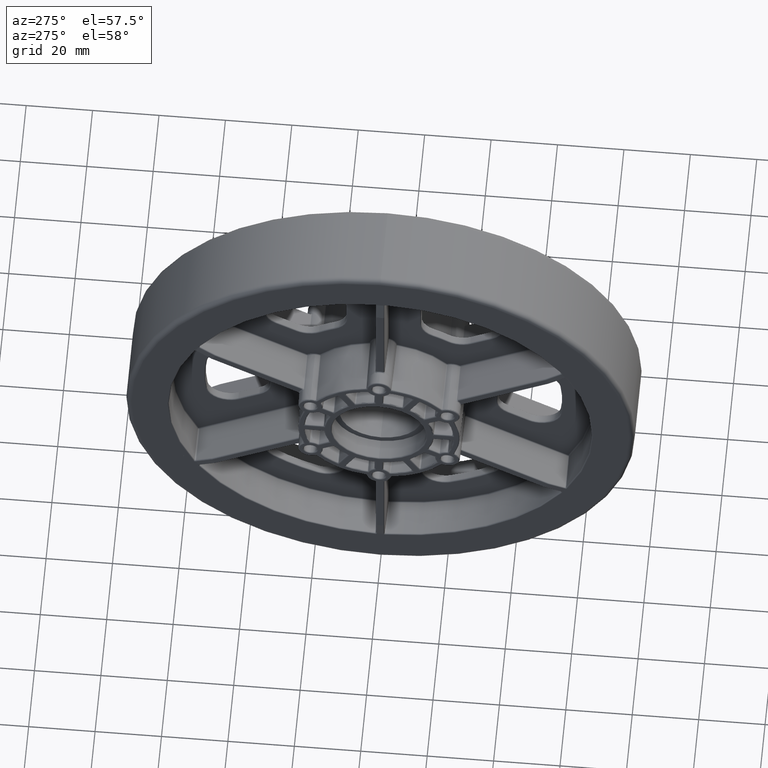
[diagram: clean part render]
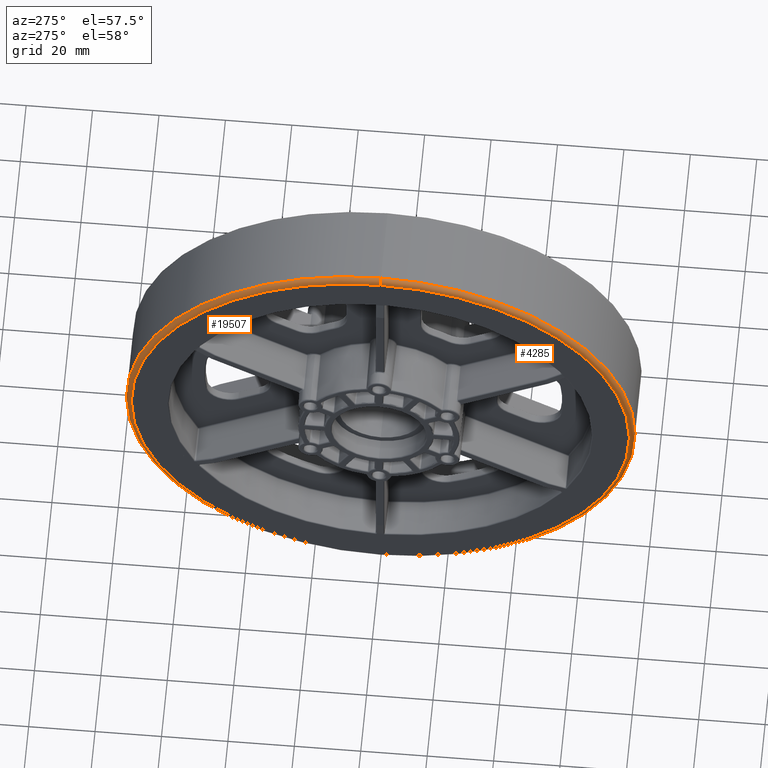
[diagram: same view with one multi-face feature highlighted, each face labeled with its STEP entity id]
A machine part, auxiliary view. The highlighted faces form ONE feature: a constant-radius fillet chain: 2 tangent blend faces with common blend radius 1.5875 mm. The faces share edges in the B-rep.
Their STEP definitions:
[1] entity #19507 (Torus):
#30 = CIRCLE ( 'NONE', #34149, 0.06250000000000022204 ) ;
#460 = CARTESIAN_POINT ( 'NONE',  ( -3.014999999999999236, 0.0000000000000000000, 0.4375000000000000000 ) ) ;
#1394 = ORIENTED_EDGE ( 'NONE', *, *, #31935, .F. ) ;
#1611 = CARTESIAN_POINT ( 'NONE',  ( 0.0000000000000000000, 0.0000000000000000000, 0.4375000000000000000 ) ) ;
#1979 = CARTESIAN_POINT ( 'NONE',  ( -2.952499999999999236, 3.615769674482559056E-16, 0.4375000000000000000 ) ) ;
#3979 = DIRECTION ( 'NONE',  ( 0.0000000000000000000, -1.000000000000000000, 0.0000000000000000000 ) ) ;
#4656 = CIRCLE ( 'NONE', #39413, 2.952499999999999236 ) ;
#5693 = DIRECTION ( 'NONE',  ( 1.000000000000000000, 0.0000000000000000000, 0.0000000000000000000 ) ) ;
#6055 = DIRECTION ( 'NONE',  ( -1.000000000000000000, 1.224646799147345072E-16, 0.0000000000000000000 ) ) ;
#6471 = VERTEX_POINT ( 'NONE', #17876 ) ;
#7879 = CIRCLE ( 'NONE', #38318, 0.06250000000000001388 ) ;
#7890 = VERTEX_POINT ( 'NONE', #31764 ) ;
#10957 = EDGE_CURVE ( 'NONE', #6471, #20269, #7879, .T. ) ;
#11885 = EDGE_CURVE ( 'NONE', #20269, #7890, #4656, .T. ) ;
#12665 = CARTESIAN_POINT ( 'NONE',  ( 0.0000000000000000000, 0.0000000000000000000, 0.4375000000000000000 ) ) ;
#13955 = DIRECTION ( 'NONE',  ( 0.0000000000000000000, 0.0000000000000000000, 1.000000000000000000 ) ) ;
#17876 = CARTESIAN_POINT ( 'NONE',  ( 3.014999999999999236, 3.692310099429269016E-16, 0.4375000000000000000 ) ) ;
#19507 = ADVANCED_FACE ( 'NONE', ( #35890 ), #26402, .T. ) ;
#20224 = CARTESIAN_POINT ( 'NONE',  ( 2.952499999999999236, 0.0000000000000000000, 0.5000000000000000000 ) ) ;
#20269 = VERTEX_POINT ( 'NONE', #20224 ) ;
#26402 = TOROIDAL_SURFACE ( 'NONE', #35143, 2.952499999999999236, 0.06250000000000000000 ) ;
#28333 = CARTESIAN_POINT ( 'NONE',  ( 2.952499999999999236, 0.0000000000000000000, 0.4375000000000000000 ) ) ;
#29997 = DIRECTION ( 'NONE',  ( -0.0000000000000000000, -0.0000000000000000000, -1.000000000000000000 ) ) ;
#30365 = DIRECTION ( 'NONE',  ( 1.224646799147353207E-16, 1.000000000000000000, -0.0000000000000000000 ) ) ;
#31764 = CARTESIAN_POINT ( 'NONE',  ( -2.952499999999999236, 3.654039886955913789E-16, 0.5000000000000000000 ) ) ;
#31935 = EDGE_CURVE ( 'NONE', #46806, #6471, #42690, .T. ) ;
#32394 = DIRECTION ( 'NONE',  ( 0.0000000000000000000, 0.0000000000000000000, -1.000000000000000000 ) ) ;
#32646 = EDGE_LOOP ( 'NONE', ( #1394, #52212, #42199, #42015 ) ) ;
#33078 = DIRECTION ( 'NONE',  ( 0.0000000000000000000, 0.0000000000000000000, 1.000000000000000000 ) ) ;
#34149 = AXIS2_PLACEMENT_3D ( 'NONE', #1979, #30365, #6055 ) ;
#35143 = AXIS2_PLACEMENT_3D ( 'NONE', #12665, #33078, #37159 ) ;
#35613 = EDGE_CURVE ( 'NONE', #46806, #7890, #30, .T. ) ;
#35890 = FACE_OUTER_BOUND ( 'NONE', #32646, .T. ) ;
#37159 = DIRECTION ( 'NONE',  ( 1.000000000000000000, 0.0000000000000000000, 0.0000000000000000000 ) ) ;
#38259 = CARTESIAN_POINT ( 'NONE',  ( 0.0000000000000000000, 0.0000000000000000000, 0.5000000000000000000 ) ) ;
#38318 = AXIS2_PLACEMENT_3D ( 'NONE', #28333, #3979, #32394 ) ;
#39413 = AXIS2_PLACEMENT_3D ( 'NONE', #38259, #13955, #42301 ) ;
#42015 = ORIENTED_EDGE ( 'NONE', *, *, #10957, .F. ) ;
#42199 = ORIENTED_EDGE ( 'NONE', *, *, #11885, .F. ) ;
#42301 = DIRECTION ( 'NONE',  ( 1.000000000000000000, 0.0000000000000000000, 0.0000000000000000000 ) ) ;
#42690 = CIRCLE ( 'NONE', #50522, 3.014999999999999236 ) ;
#46806 = VERTEX_POINT ( 'NONE', #460 ) ;
#50522 = AXIS2_PLACEMENT_3D ( 'NONE', #1611, #29997, #5693 ) ;
#52212 = ORIENTED_EDGE ( 'NONE', *, *, #35613, .T. ) ;
[2] entity #4285 (Torus):
#30 = CIRCLE ( 'NONE', #34149, 0.06250000000000022204 ) ;
#460 = CARTESIAN_POINT ( 'NONE',  ( -3.014999999999999236, 0.0000000000000000000, 0.4375000000000000000 ) ) ;
#914 = ORIENTED_EDGE ( 'NONE', *, *, #35613, .F. ) ;
#1531 = ORIENTED_EDGE ( 'NONE', *, *, #31407, .F. ) ;
#1979 = CARTESIAN_POINT ( 'NONE',  ( -2.952499999999999236, 3.615769674482559056E-16, 0.4375000000000000000 ) ) ;
#3955 = CARTESIAN_POINT ( 'NONE',  ( 0.0000000000000000000, 0.0000000000000000000, 0.4375000000000000000 ) ) ;
#3979 = DIRECTION ( 'NONE',  ( 0.0000000000000000000, -1.000000000000000000, 0.0000000000000000000 ) ) ;
#4285 = ADVANCED_FACE ( 'NONE', ( #8356 ), #50216, .T. ) ;
#6055 = DIRECTION ( 'NONE',  ( -1.000000000000000000, 1.224646799147345072E-16, 0.0000000000000000000 ) ) ;
#6471 = VERTEX_POINT ( 'NONE', #17876 ) ;
#6942 = EDGE_LOOP ( 'NONE', ( #914, #1531, #35318, #14636 ) ) ;
#7879 = CIRCLE ( 'NONE', #38318, 0.06250000000000001388 ) ;
#7890 = VERTEX_POINT ( 'NONE', #31764 ) ;
#8024 = DIRECTION ( 'NONE',  ( 1.000000000000000000, 0.0000000000000000000, 0.0000000000000000000 ) ) ;
#8356 = FACE_OUTER_BOUND ( 'NONE', #6942, .T. ) ;
#10957 = EDGE_CURVE ( 'NONE', #6471, #20269, #7879, .T. ) ;
#11560 = DIRECTION ( 'NONE',  ( 0.0000000000000000000, 0.0000000000000000000, 1.000000000000000000 ) ) ;
#14012 = DIRECTION ( 'NONE',  ( 1.000000000000000000, 0.0000000000000000000, 0.0000000000000000000 ) ) ;
#14636 = ORIENTED_EDGE ( 'NONE', *, *, #29204, .F. ) ;
#17876 = CARTESIAN_POINT ( 'NONE',  ( 3.014999999999999236, 3.692310099429269016E-16, 0.4375000000000000000 ) ) ;
#20224 = CARTESIAN_POINT ( 'NONE',  ( 2.952499999999999236, 0.0000000000000000000, 0.5000000000000000000 ) ) ;
#20269 = VERTEX_POINT ( 'NONE', #20224 ) ;
#21330 = DIRECTION ( 'NONE',  ( 0.0000000000000000000, 0.0000000000000000000, 1.000000000000000000 ) ) ;
#27063 = AXIS2_PLACEMENT_3D ( 'NONE', #35908, #11560, #39951 ) ;
#28333 = CARTESIAN_POINT ( 'NONE',  ( 2.952499999999999236, 0.0000000000000000000, 0.4375000000000000000 ) ) ;
#29204 = EDGE_CURVE ( 'NONE', #7890, #20269, #47480, .T. ) ;
#30365 = DIRECTION ( 'NONE',  ( 1.224646799147353207E-16, 1.000000000000000000, -0.0000000000000000000 ) ) ;
#31407 = EDGE_CURVE ( 'NONE', #6471, #46806, #48421, .T. ) ;
#31764 = CARTESIAN_POINT ( 'NONE',  ( -2.952499999999999236, 3.654039886955913789E-16, 0.5000000000000000000 ) ) ;
#32374 = DIRECTION ( 'NONE',  ( -0.0000000000000000000, -0.0000000000000000000, -1.000000000000000000 ) ) ;
#32394 = DIRECTION ( 'NONE',  ( 0.0000000000000000000, 0.0000000000000000000, -1.000000000000000000 ) ) ;
#34149 = AXIS2_PLACEMENT_3D ( 'NONE', #1979, #30365, #6055 ) ;
#35318 = ORIENTED_EDGE ( 'NONE', *, *, #10957, .T. ) ;
#35613 = EDGE_CURVE ( 'NONE', #46806, #7890, #30, .T. ) ;
#35908 = CARTESIAN_POINT ( 'NONE',  ( 0.0000000000000000000, 0.0000000000000000000, 0.5000000000000000000 ) ) ;
#38315 = CARTESIAN_POINT ( 'NONE',  ( 0.0000000000000000000, 0.0000000000000000000, 0.4375000000000000000 ) ) ;
#38318 = AXIS2_PLACEMENT_3D ( 'NONE', #28333, #3979, #32394 ) ;
#39136 = AXIS2_PLACEMENT_3D ( 'NONE', #38315, #21330, #14012 ) ;
#39951 = DIRECTION ( 'NONE',  ( 1.000000000000000000, 0.0000000000000000000, 0.0000000000000000000 ) ) ;
#46806 = VERTEX_POINT ( 'NONE', #460 ) ;
#47157 = AXIS2_PLACEMENT_3D ( 'NONE', #3955, #32374, #8024 ) ;
#47480 = CIRCLE ( 'NONE', #27063, 2.952499999999999236 ) ;
#48421 = CIRCLE ( 'NONE', #47157, 3.014999999999999236 ) ;
#50216 = TOROIDAL_SURFACE ( 'NONE', #39136, 2.952499999999999236, 0.06250000000000000000 ) ;